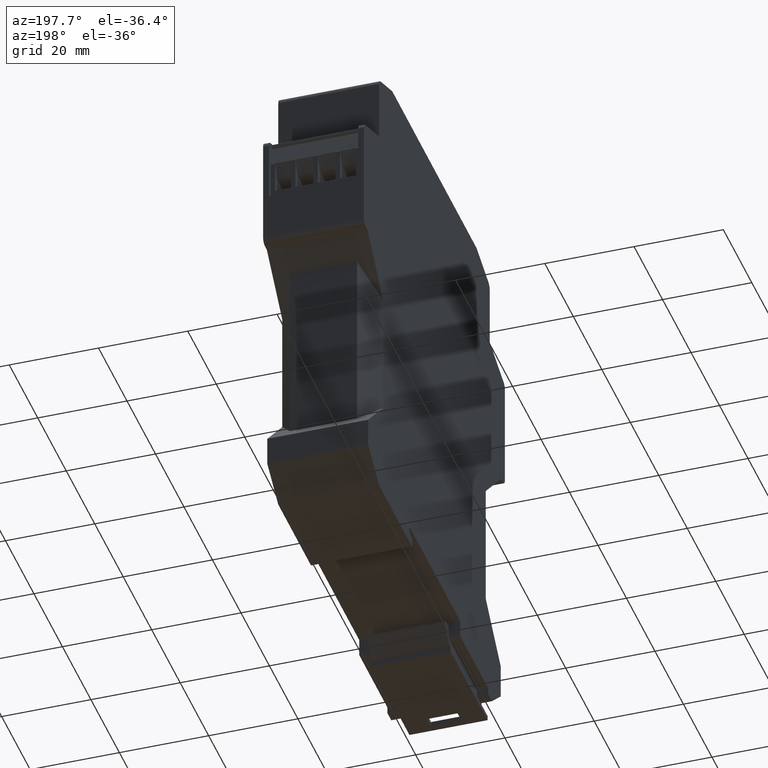
[diagram: clean part render]
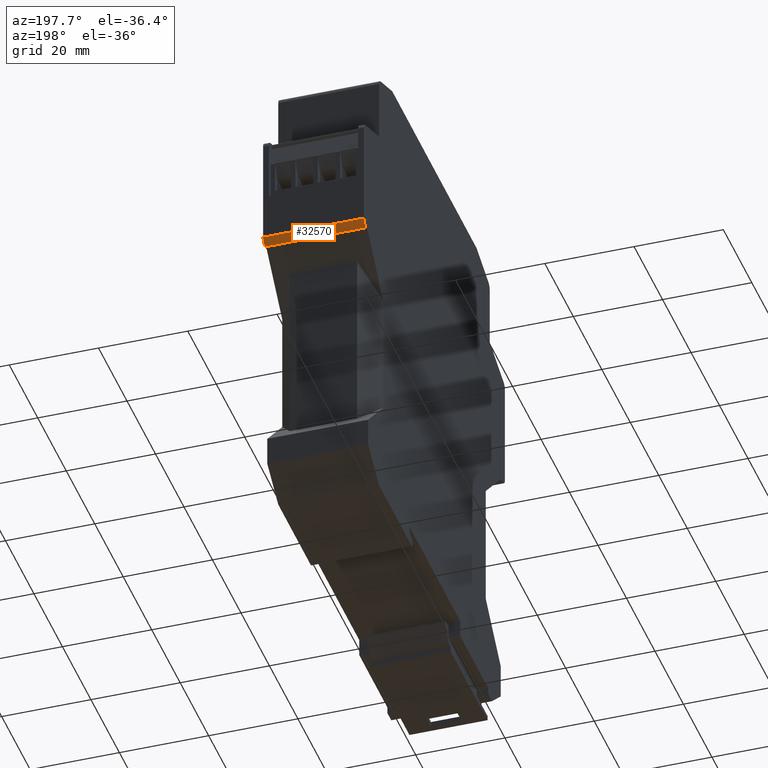
[diagram: same view with one face highlighted and labeled with its STEP entity id]
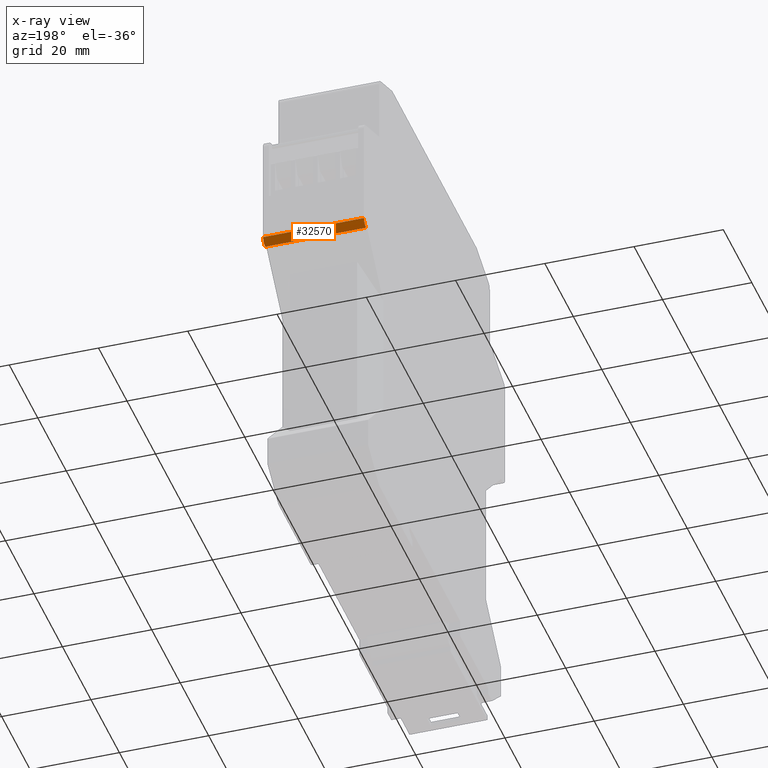
[diagram: x-ray of the same camera — body ghosted, the highlighted face saturated]
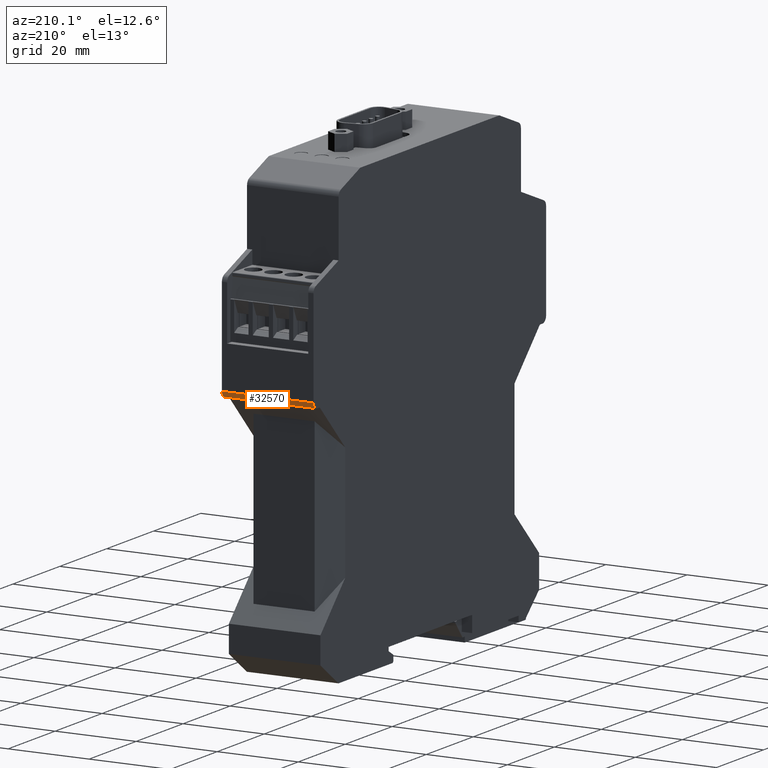
[diagram: same view with one face highlighted and labeled with its STEP entity id]
A machine part, auxiliary view. The second image highlights one B-rep face of the part: STEP entity #32570.
The next image is the same camera in x-ray: the body ghosted, the highlighted face saturated — about 0% of this face is hidden behind the body in this view.
A second angle (auxiliary view) of the same face is appended — the face is thin or edge-on in the first view.
In plain terms, the highlighted cylindrical surface (edge-blend (fillet) strip) has radius 1.5 mm, axis along (-1, -0, -0).
Its self-contained STEP definition (entity closure, byte-faithful):
#2400=CARTESIAN_POINT('',(48.0000000000926,57.9000000000015,
3.5527136788005E-15));
#2410=VERTEX_POINT('',#2400);
#2440=CARTESIAN_POINT('',(48.0000000000925,59.4000000000015,
3.5527136788005E-15));
#2450=DIRECTION('',(0.,0.,-1.));
#2460=DIRECTION('',(-1.,0.,0.));
#2470=AXIS2_PLACEMENT_3D('',#2440,#2450,#2460);
#2480=CIRCLE('',#2470,1.5);
#2490=CARTESIAN_POINT('',(49.5000000000006,59.4000000000015,
3.5527136788005E-15));
#2500=VERTEX_POINT('',#2490);
#2510=EDGE_CURVE('',#2500,#2410,#2480,.T.);
#4080=CARTESIAN_POINT('',(49.5000000000006,59.4000000000015,22.6));
#4090=DIRECTION('',(0.,0.,-1.));
#4100=VECTOR('',#4090,1.);
#4110=LINE('',#4080,#4100);
#4120=CARTESIAN_POINT('',(49.5000000000006,59.4000000000015,22.6));
#4130=VERTEX_POINT('',#4120);
#4140=EDGE_CURVE('',#4130,#2500,#4110,.T.);
#32330=CARTESIAN_POINT('',(48.0000000000925,59.4000000000015,22.6));
#32340=DIRECTION('',(0.,0.,-1.));
#32350=DIRECTION('',(-1.,0.,0.));
#32360=AXIS2_PLACEMENT_3D('',#32330,#32340,#32350);
#32370=CYLINDRICAL_SURFACE('',#32360,1.5);
#32380=ORIENTED_EDGE('',*,*,#4140,.F.);
#32390=ORIENTED_EDGE('',*,*,#2510,.F.);
#32400=CARTESIAN_POINT('',(48.0000000000927,57.9000000000015,22.6));
#32410=DIRECTION('',(0.,0.,-1.));
#32420=VECTOR('',#32410,1.);
#32430=LINE('',#32400,#32420);
#32440=CARTESIAN_POINT('',(48.0000000000927,57.9000000000015,22.6));
#32450=VERTEX_POINT('',#32440);
#32460=EDGE_CURVE('',#32450,#2410,#32430,.T.);
#32470=ORIENTED_EDGE('',*,*,#32460,.T.);
#32480=CARTESIAN_POINT('',(48.0000000000925,59.4000000000015,22.6));
#32490=DIRECTION('',(0.,0.,-1.));
#32500=DIRECTION('',(-1.,0.,0.));
#32510=AXIS2_PLACEMENT_3D('',#32480,#32490,#32500);
#32520=CIRCLE('',#32510,1.5);
#32530=EDGE_CURVE('',#4130,#32450,#32520,.T.);
#32540=ORIENTED_EDGE('',*,*,#32530,.T.);
#32550=EDGE_LOOP('',(#32540,#32470,#32390,#32380));
#32560=FACE_OUTER_BOUND('',#32550,.T.);
#32570=ADVANCED_FACE('',(#32560),#32370,.T.);